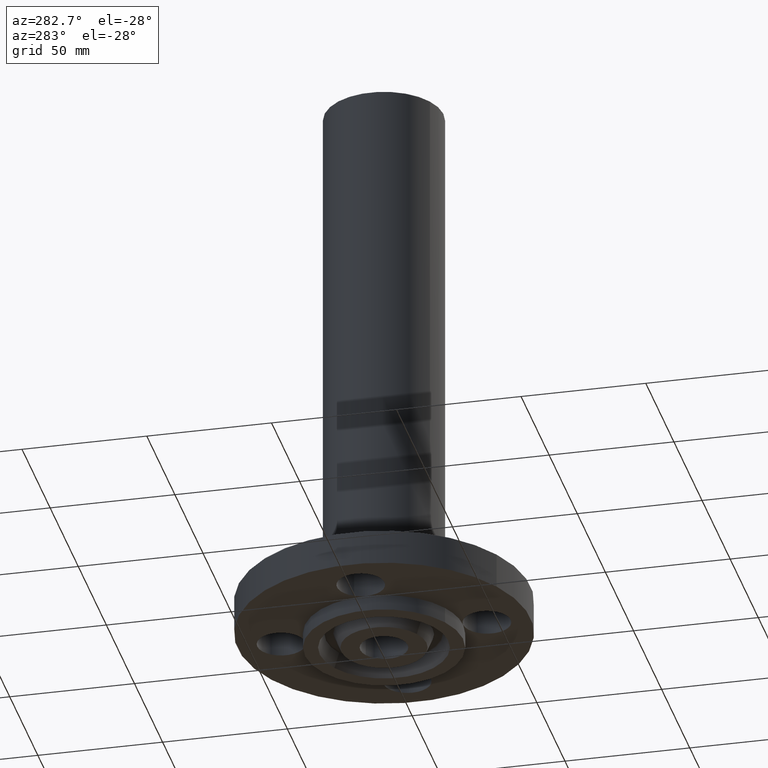
[diagram: clean part render]
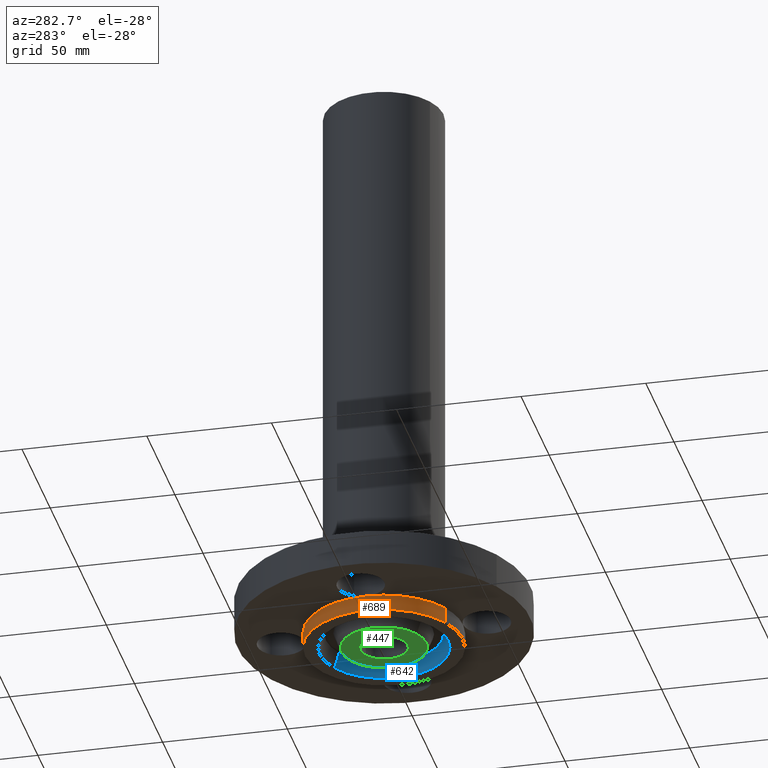
[diagram: same view with three faces highlighted in distinct colors, each labeled with its STEP entity id]
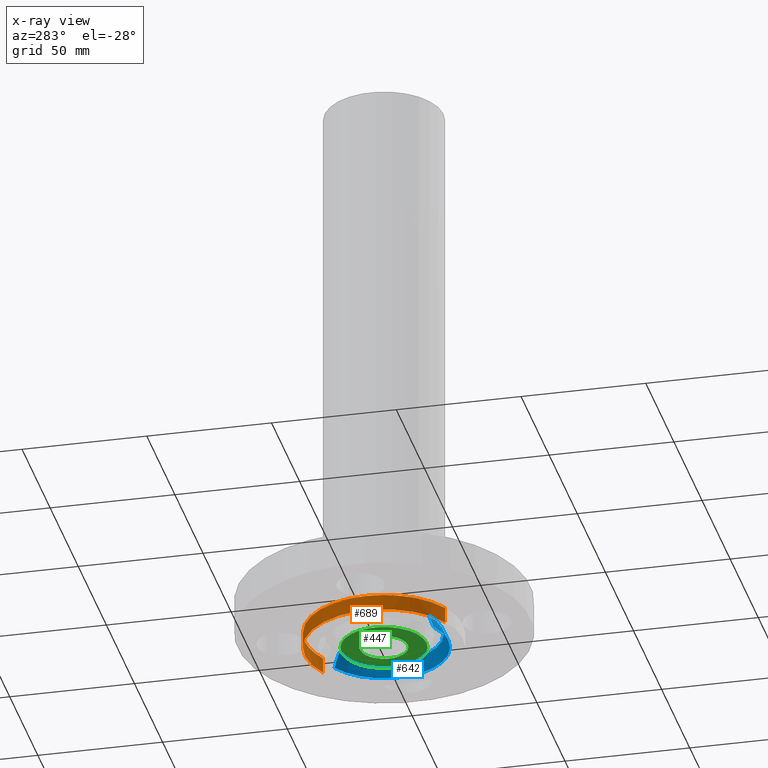
[diagram: x-ray of the same camera — body ghosted, the three highlighted faces saturated]
A machine part, auxiliary view with three faces highlighted in distinct colors.
The next image is the same camera in x-ray (body ghosted, the three faces saturated) — at least one of them is partly hidden behind the body in this view.
Their STEP definitions:

[orange] entity #689 — the highlighted cylindrical surface (partial cylindrical patch) has radius 31.75 mm, axis along (0, 0, -1).
#126=AXIS2_PLACEMENT_3D('Circle Axis2P3D',#124,#125,$) ;
#154=AXIS2_PLACEMENT_3D('Circle Axis2P3D',#152,#153,$) ;
#161=AXIS2_PLACEMENT_3D('Circle Axis2P3D',#159,#160,$) ;
#645=AXIS2_PLACEMENT_3D('Circle Axis2P3D',#643,#644,$) ;
#669=AXIS2_PLACEMENT_3D('Cylinder Axis2P3D',#666,#667,#668) ;
#104=CARTESIAN_POINT('Vertex',(-1.25000000001,0.,0.)) ;
#124=CARTESIAN_POINT('Axis2P3D Location',(0.,0.,0.)) ;
#128=CARTESIAN_POINT('Vertex',(-0.599281923258,-1.09697820237,0.)) ;
#149=CARTESIAN_POINT('Vertex',(0.599281923258,1.09697820237,0.)) ;
#152=CARTESIAN_POINT('Axis2P3D Location',(0.,0.,0.)) ;
#156=CARTESIAN_POINT('Vertex',(7.87223922191E-016,1.25000000001,0.)) ;
#159=CARTESIAN_POINT('Axis2P3D Location',(0.,0.,0.)) ;
#643=CARTESIAN_POINT('Axis2P3D Location',(0.,0.,-0.250000000001)) ;
#647=CARTESIAN_POINT('Vertex',(-0.599281923258,-1.09697820237,-0.250000000001)) ;
#649=CARTESIAN_POINT('Vertex',(0.599281923258,1.09697820237,-0.250000000001)) ;
#666=CARTESIAN_POINT('Axis2P3D Location',(0.,0.,4.34375000002)) ;
#671=CARTESIAN_POINT('Line Origine',(-0.599281923258,-1.09697820237,-0.125000000001)) ;
#676=CARTESIAN_POINT('Line Origine',(0.599281923258,1.09697820237,-0.125000000001)) ;
#125=DIRECTION('Axis2P3D Direction',(0.,0.,-0.0393700787402)) ;
#153=DIRECTION('Axis2P3D Direction',(0.,0.,-0.0393700787402)) ;
#160=DIRECTION('Axis2P3D Direction',(0.,0.,-0.0393700787402)) ;
#644=DIRECTION('Axis2P3D Direction',(0.,0.,-0.0393700787402)) ;
#667=DIRECTION('Axis2P3D Direction',(0.,0.,-0.0393700787402)) ;
#668=DIRECTION('Axis2P3D XDirection',(0.0188750212049,0.0345504945626,0.)) ;
#672=DIRECTION('Vector Direction',(0.,0.,-0.0393700787402)) ;
#677=DIRECTION('Vector Direction',(0.,0.,-0.0393700787402)) ;
#673=VECTOR('Line Direction',#672,0.0393700787402) ;
#678=VECTOR('Line Direction',#677,0.0393700787402) ;
#682=ORIENTED_EDGE('',*,*,#651,.F.) ;
#683=ORIENTED_EDGE('',*,*,#675,.T.) ;
#684=ORIENTED_EDGE('',*,*,#130,.T.) ;
#685=ORIENTED_EDGE('',*,*,#163,.T.) ;
#686=ORIENTED_EDGE('',*,*,#158,.T.) ;
#687=ORIENTED_EDGE('',*,*,#680,.F.) ;
#689=ADVANCED_FACE('PartBody',(#688),#670,.T.) ;
#127=CIRCLE('generated circle',#126,1.25000000001) ;
#155=CIRCLE('generated circle',#154,1.25000000001) ;
#162=CIRCLE('generated circle',#161,1.25000000001) ;
#646=CIRCLE('generated circle',#645,1.25000000001) ;
#670=CYLINDRICAL_SURFACE('generated cylinder',#669,1.25000000001) ;
#130=EDGE_CURVE('',#129,#105,#127,.T.) ;
#158=EDGE_CURVE('',#157,#150,#155,.T.) ;
#163=EDGE_CURVE('',#105,#157,#162,.T.) ;
#651=EDGE_CURVE('',#648,#650,#646,.T.) ;
#675=EDGE_CURVE('',#648,#129,#674,.F.) ;
#680=EDGE_CURVE('',#650,#150,#679,.F.) ;
#681=EDGE_LOOP('',(#682,#683,#684,#685,#686,#687)) ;
#688=FACE_OUTER_BOUND('',#681,.T.) ;
#674=LINE('Line',#671,#673) ;
#679=LINE('Line',#676,#678) ;
#105=VERTEX_POINT('',#104) ;
#129=VERTEX_POINT('',#128) ;
#150=VERTEX_POINT('',#149) ;
#157=VERTEX_POINT('',#156) ;
#648=VERTEX_POINT('',#647) ;
#650=VERTEX_POINT('',#649) ;

[blue] entity #642 — the highlighted conical surface has half-angle 23 deg.
#590=AXIS2_PLACEMENT_3D('Circle Axis2P3D',#588,#589,$) ;
#603=AXIS2_PLACEMENT_3D('Cone Axis2P3D',#600,#601,#602) ;
#633=AXIS2_PLACEMENT_3D('Circle Axis2P3D',#631,#632,$) ;
#566=CARTESIAN_POINT('Vertex',(-0.440063979875,-0.80553171193,-0.0188873350169)) ;
#573=CARTESIAN_POINT('Vertex',(0.440063979875,0.80553171193,-0.0188873350169)) ;
#588=CARTESIAN_POINT('Axis2P3D Location',(0.,0.,-0.0188873350169)) ;
#600=CARTESIAN_POINT('Axis2P3D Location',(0.,0.,-0.0188873350169)) ;
#605=CARTESIAN_POINT('Line Origine',(-0.46358016355,-0.848577797407,-0.134443667509)) ;
#609=CARTESIAN_POINT('Vertex',(-0.487096347224,-0.891623882884,-0.250000000001)) ;
#616=CARTESIAN_POINT('Vertex',(0.487096347224,0.891623882884,-0.250000000001)) ;
#619=CARTESIAN_POINT('Line Origine',(0.46358016355,0.848577797407,-0.134443667509)) ;
#631=CARTESIAN_POINT('Axis2P3D Location',(0.,0.,-0.250000000001)) ;
#589=DIRECTION('Axis2P3D Direction',(0.,0.,-0.0393700787402)) ;
#601=DIRECTION('Axis2P3D Direction',(0.,0.,-0.0393700787402)) ;
#602=DIRECTION('Axis2P3D XDirection',(0.0188750212049,0.0345504945626,0.)) ;
#606=DIRECTION('Vector Direction',(-0.00737505833565,-0.0134999537303,-0.0362403485611)) ;
#620=DIRECTION('Vector Direction',(0.00737505833565,0.0134999537303,-0.0362403485611)) ;
#632=DIRECTION('Axis2P3D Direction',(0.,0.,-0.0393700787402)) ;
#607=VECTOR('Line Direction',#606,0.0393700787402) ;
#621=VECTOR('Line Direction',#620,0.0393700787402) ;
#637=ORIENTED_EDGE('',*,*,#592,.F.) ;
#638=ORIENTED_EDGE('',*,*,#623,.T.) ;
#639=ORIENTED_EDGE('',*,*,#635,.T.) ;
#640=ORIENTED_EDGE('',*,*,#611,.F.) ;
#642=ADVANCED_FACE('PartBody',(#641),#604,.F.) ;
#591=CIRCLE('generated circle',#590,0.917898494011) ;
#634=CIRCLE('generated circle',#633,1.016) ;
#604=CONICAL_SURFACE('Cone',#603,0.917898494011,0.401425727959) ;
#592=EDGE_CURVE('',#574,#567,#591,.T.) ;
#611=EDGE_CURVE('',#567,#610,#608,.T.) ;
#623=EDGE_CURVE('',#574,#617,#622,.T.) ;
#635=EDGE_CURVE('',#617,#610,#634,.T.) ;
#636=EDGE_LOOP('',(#637,#638,#639,#640)) ;
#641=FACE_OUTER_BOUND('',#636,.T.) ;
#608=LINE('Line',#605,#607) ;
#622=LINE('Line',#619,#621) ;
#567=VERTEX_POINT('',#566) ;
#574=VERTEX_POINT('',#573) ;
#610=VERTEX_POINT('',#609) ;
#617=VERTEX_POINT('',#616) ;

[green] entity #447 — the highlighted planar face has unit normal (0, 0, -1).
#391=AXIS2_PLACEMENT_3D('Circle Axis2P3D',#389,#390,$) ;
#410=AXIS2_PLACEMENT_3D('Circle Axis2P3D',#408,#409,$) ;
#423=AXIS2_PLACEMENT_3D('Plane Axis2P3D',#420,#421,#422) ;
#427=AXIS2_PLACEMENT_3D('Circle Axis2P3D',#425,#426,$) ;
#436=AXIS2_PLACEMENT_3D('Circle Axis2P3D',#434,#435,$) ;
#386=CARTESIAN_POINT('Vertex',(0.179784576977,0.32909346071,-0.250000000001)) ;
#389=CARTESIAN_POINT('Axis2P3D Location',(0.,0.,-0.250000000001)) ;
#393=CARTESIAN_POINT('Vertex',(-0.179784576977,-0.32909346071,-0.250000000001)) ;
#408=CARTESIAN_POINT('Axis2P3D Location',(0.,0.,-0.250000000001)) ;
#420=CARTESIAN_POINT('Axis2P3D Location',(0.,0.375000000001,-0.250000000001)) ;
#425=CARTESIAN_POINT('Axis2P3D Location',(0.,0.,-0.250000000001)) ;
#429=CARTESIAN_POINT('Vertex',(-0.322173961943,-0.589735481593,-0.250000000001)) ;
#431=CARTESIAN_POINT('Vertex',(0.322173961943,0.589735481593,-0.250000000001)) ;
#434=CARTESIAN_POINT('Axis2P3D Location',(0.,0.,-0.250000000001)) ;
#390=DIRECTION('Axis2P3D Direction',(0.,0.,-0.0393700787402)) ;
#409=DIRECTION('Axis2P3D Direction',(0.,0.,-0.0393700787402)) ;
#421=DIRECTION('Axis2P3D Direction',(0.,0.,-0.0393700787402)) ;
#422=DIRECTION('Axis2P3D XDirection',(0.0393700787402,0.,0.)) ;
#426=DIRECTION('Axis2P3D Direction',(0.,0.,-0.0393700787402)) ;
#435=DIRECTION('Axis2P3D Direction',(0.,0.,-0.0393700787402)) ;
#440=ORIENTED_EDGE('',*,*,#433,.T.) ;
#441=ORIENTED_EDGE('',*,*,#438,.T.) ;
#444=ORIENTED_EDGE('',*,*,#395,.F.) ;
#445=ORIENTED_EDGE('',*,*,#412,.F.) ;
#446=FACE_BOUND('',#443,.T.) ;
#447=ADVANCED_FACE('PartBody',(#442,#446),#424,.T.) ;
#392=CIRCLE('generated circle',#391,0.375000000001) ;
#411=CIRCLE('generated circle',#410,0.375000000001) ;
#428=CIRCLE('generated circle',#427,0.672000000003) ;
#437=CIRCLE('generated circle',#436,0.672000000003) ;
#395=EDGE_CURVE('',#387,#394,#392,.T.) ;
#412=EDGE_CURVE('',#394,#387,#411,.T.) ;
#433=EDGE_CURVE('',#430,#432,#428,.T.) ;
#438=EDGE_CURVE('',#432,#430,#437,.T.) ;
#439=EDGE_LOOP('',(#440,#441)) ;
#443=EDGE_LOOP('',(#444,#445)) ;
#442=FACE_OUTER_BOUND('',#439,.T.) ;
#424=PLANE('',#423) ;
#387=VERTEX_POINT('',#386) ;
#394=VERTEX_POINT('',#393) ;
#430=VERTEX_POINT('',#429) ;
#432=VERTEX_POINT('',#431) ;